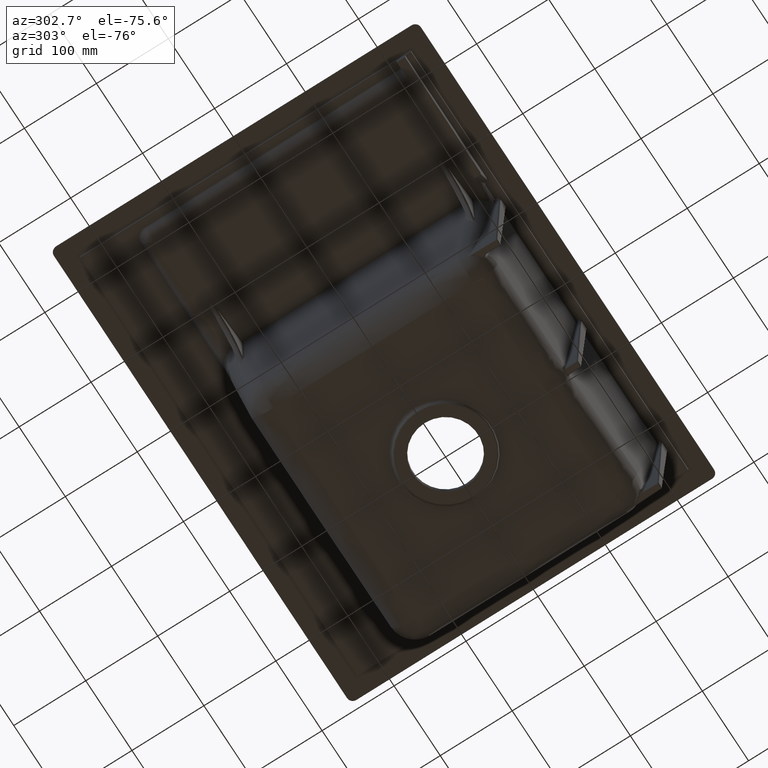
[diagram: clean part render]
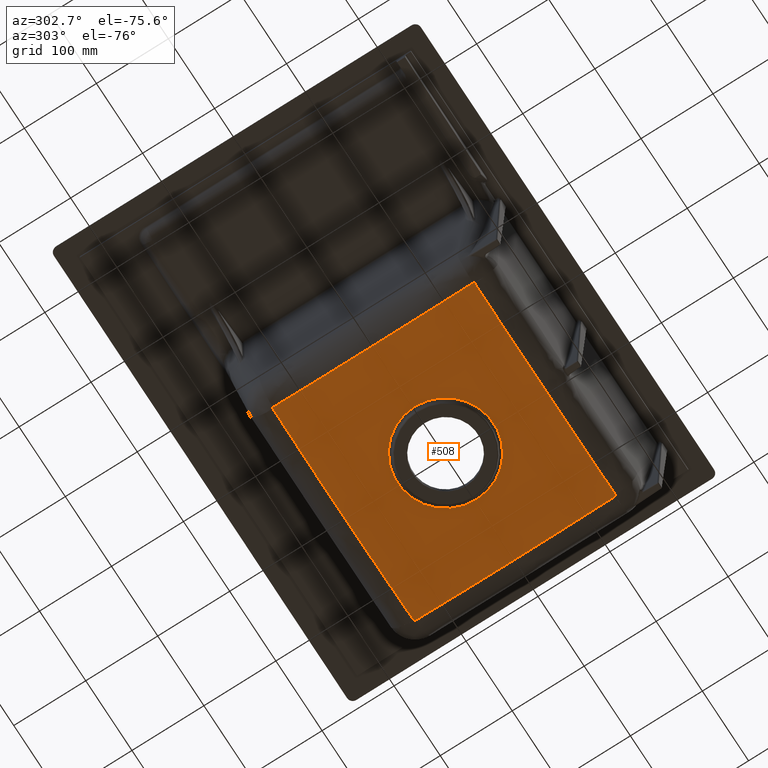
[diagram: same view with one face highlighted and labeled with its STEP entity id]
A machine part, auxiliary view. The second image highlights one B-rep face of the part: STEP entity #508.
In plain terms, the highlighted conical surface has half-angle 86 deg.
Its self-contained STEP definition (entity closure, byte-faithful):
#93=FACE_BOUND('',#1064,.T.);
#94=FACE_BOUND('',#1065,.T.);
#103=CONICAL_SURFACE('',#3953,63.3319769449786,86.);
#187=CIRCLE('',#3944,66.8230713004215);
#508=ADVANCED_FACE('',(#93,#94),#103,.T.);
#1064=EDGE_LOOP('',(#1880,#1881,#1882,#1883,#1884,#1885,#1886,#1887,#1888));
#1065=EDGE_LOOP('',(#1889));
#1440=B_SPLINE_CURVE_WITH_KNOTS('',3,(#8664,#8665,#8666,#8667,#8668,#8669,
#8670,#8671,#8672,#8673,#8674,#8675,#8676,#8677,#8678,#8679,#8680,#8681,
#8682,#8683,#8684,#8685,#8686,#8687,#8688,#8689,#8690,#8691,#8692,#8693,
#8694,#8695,#8696,#8697,#8698,#8699,#8700,#8701,#8702,#8703,#8704,#8705,
#8706,#8707,#8708,#8709,#8710,#8711),.UNSPECIFIED.,.F.,.F.,(4,2,2,2,2,1,
2,2,2,2,2,2,2,2,2,2,2,2,2,2,1,2,2,2,4),(0.,0.125000000000001,0.187500000000002,
0.218750000000002,0.234375000000002,0.242187500000002,0.246093750000002,
0.250000000000002,0.312500000000002,0.343750000000002,0.359375000000002,
0.375000000000001,0.5,0.562499999999999,0.593749999999999,0.609374999999999,
0.624999999999999,0.687499999999998,0.718749999999998,0.734374999999997,
0.742187499999997,0.746093749999997,0.749999999999997,0.874999999999999,
1.),.UNSPECIFIED.);
#1441=B_SPLINE_CURVE_WITH_KNOTS('',3,(#8714,#8715,#8716,#8717,#8718,#8719,
#8720,#8721,#8722,#8723,#8724,#8725),.UNSPECIFIED.,.F.,.F.,(4,2,2,2,2,4),
(0.,0.211716823864517,0.423882974742039,0.63906559405971,0.854877048097277,
1.),.UNSPECIFIED.);
#1442=B_SPLINE_CURVE_WITH_KNOTS('',3,(#8727,#8728,#8729,#8730,#8731,#8732,
#8733,#8734,#8735,#8736,#8737,#8738,#8739,#8740,#8741,#8742,#8743,#8744,
#8745,#8746,#8747,#8748,#8749,#8750,#8751,#8752,#8753,#8754,#8755,#8756,
#8757,#8758,#8759,#8760),.UNSPECIFIED.,.F.,.F.,(4,2,2,2,2,2,2,2,2,2,2,2,
2,2,2,2,4),(0.,0.125000000000001,0.187500000000001,0.218750000000001,0.234375000000001,
0.250000000000001,0.312500000000001,0.375000000000001,0.500000000000001,
0.562500000000001,0.593750000000001,0.625000000000001,0.687500000000001,
0.718750000000001,0.734375000000001,0.75,1.),.UNSPECIFIED.);
#1443=B_SPLINE_CURVE_WITH_KNOTS('',3,(#8762,#8763,#8764,#8765,#8766,#8767,
#8768,#8769,#8770,#8771,#8772,#8773),.UNSPECIFIED.,.F.,.F.,(4,2,2,2,2,4),
(0.,0.145626910799789,0.361734866379035,0.576995031248322,0.788632292524085,
1.),.UNSPECIFIED.);
#1444=B_SPLINE_CURVE_WITH_KNOTS('',3,(#8775,#8776,#8777,#8778,#8779,#8780,
#8781,#8782,#8783,#8784,#8785,#8786,#8787,#8788,#8789,#8790,#8791,#8792,
#8793,#8794,#8795,#8796,#8797,#8798,#8799,#8800,#8801,#8802,#8803,#8804,
#8805,#8806,#8807,#8808,#8809,#8810,#8811,#8812,#8813,#8814,#8815,#8816,
#8817,#8818,#8819,#8820,#8821,#8822),.UNSPECIFIED.,.F.,.F.,(4,2,2,2,2,1,
2,2,2,2,2,2,2,2,2,2,2,2,2,2,1,2,2,2,4),(0.,0.124999999999997,0.187499999999996,
0.218749999999995,0.234374999999995,0.242187499999995,0.246093749999995,
0.249999999999995,0.312499999999995,0.343749999999994,0.359374999999994,
0.374999999999994,0.499999999999994,0.562499999999993,0.593749999999993,
0.609374999999993,0.624999999999993,0.687499999999993,0.718749999999993,
0.734374999999993,0.742187499999993,0.746093749999993,0.749999999999993,
0.874999999999996,1.),.UNSPECIFIED.);
#1445=B_SPLINE_CURVE_WITH_KNOTS('',3,(#8824,#8825,#8826,#8827,#8828,#8829,
#8830,#8831,#8832,#8833,#8834,#8835),.UNSPECIFIED.,.F.,.F.,(4,2,2,2,2,4),
(0.,0.144960365757087,0.360155224294096,0.575347441395898,0.789354088460915,
1.),.UNSPECIFIED.);
#1446=B_SPLINE_CURVE_WITH_KNOTS('',3,(#8837,#8838,#8839,#8840,#8841,#8842,
#8843,#8844,#8845,#8846,#8847,#8848,#8849,#8850,#8851,#8852,#8853,#8854,
#8855,#8856,#8857,#8858,#8859,#8860,#8861),.UNSPECIFIED.,.F.,.F.,(4,2,2,
2,2,1,2,2,2,2,2,2,4),(0.,0.249999999999994,0.374999999999991,0.437499999999989,
0.468749999999988,0.484374999999988,0.492187499999988,0.499999999999988,
0.624999999999991,0.687499999999992,0.718749999999993,0.749999999999994,
1.),.UNSPECIFIED.);
#1447=B_SPLINE_CURVE_WITH_KNOTS('',3,(#8863,#8864,#8865,#8866,#8867,#8868,
#8869,#8870,#8871,#8872,#8873,#8874,#8875,#8876,#8877,#8878,#8879,#8880,
#8881,#8882,#8883,#8884),.UNSPECIFIED.,.F.,.F.,(4,2,2,2,2,2,2,2,2,2,4),
(0.,0.124999999999999,0.187499999999999,0.218749999999999,0.249999999999999,
0.374999999999998,0.437499999999997,0.468749999999997,0.484374999999997,
0.499999999999997,1.),.UNSPECIFIED.);
#1448=B_SPLINE_CURVE_WITH_KNOTS('',3,(#8886,#8887,#8888,#8889,#8890,#8891,
#8892,#8893,#8894,#8895,#8896,#8897),.UNSPECIFIED.,.F.,.F.,(4,2,2,2,2,4),
(0.,0.149599754056844,0.36303187560093,0.576365981097242,0.788448649368495,
1.),.UNSPECIFIED.);
#1880=ORIENTED_EDGE('',*,*,#3382,.T.);
#1881=ORIENTED_EDGE('',*,*,#3383,.T.);
#1882=ORIENTED_EDGE('',*,*,#3384,.T.);
#1883=ORIENTED_EDGE('',*,*,#3385,.T.);
#1884=ORIENTED_EDGE('',*,*,#3386,.T.);
#1885=ORIENTED_EDGE('',*,*,#3387,.T.);
#1886=ORIENTED_EDGE('',*,*,#3388,.T.);
#1887=ORIENTED_EDGE('',*,*,#3389,.T.);
#1888=ORIENTED_EDGE('',*,*,#3390,.T.);
#1889=ORIENTED_EDGE('',*,*,#3335,.T.);
#2976=VERTEX_POINT('',#7975);
#3019=VERTEX_POINT('',#8712);
#3020=VERTEX_POINT('',#8713);
#3021=VERTEX_POINT('',#8726);
#3022=VERTEX_POINT('',#8761);
#3023=VERTEX_POINT('',#8774);
#3024=VERTEX_POINT('',#8823);
#3025=VERTEX_POINT('',#8836);
#3026=VERTEX_POINT('',#8862);
#3027=VERTEX_POINT('',#8885);
#3335=EDGE_CURVE('',#2976,#2976,#187,.T.);
#3382=EDGE_CURVE('',#3019,#3020,#1440,.T.);
#3383=EDGE_CURVE('',#3020,#3021,#1441,.T.);
#3384=EDGE_CURVE('',#3021,#3022,#1442,.T.);
#3385=EDGE_CURVE('',#3022,#3023,#1443,.T.);
#3386=EDGE_CURVE('',#3023,#3024,#1444,.T.);
#3387=EDGE_CURVE('',#3024,#3025,#1445,.T.);
#3388=EDGE_CURVE('',#3025,#3026,#1446,.T.);
#3389=EDGE_CURVE('',#3026,#3027,#1447,.T.);
#3390=EDGE_CURVE('',#3027,#3019,#1448,.T.);
#3944=AXIS2_PLACEMENT_3D('',#7974,#4310,#4311);
#3953=AXIS2_PLACEMENT_3D('',#8898,#4334,#4335);
#4310=DIRECTION('',(0.,0.,1.));
#4311=DIRECTION('',(-1.,0.,0.));
#4334=DIRECTION('',(0.,0.,1.));
#4335=DIRECTION('',(-1.,0.,5.79690455905105E-18));
#7974=CARTESIAN_POINT('',(0.,0.,5.77944236970249));
#7975=CARTESIAN_POINT('',(-66.8230713004215,0.,5.77944236970249));
#8664=CARTESIAN_POINT('',(151.877942827349,-138.681842323498,15.4884658241848));
#8665=CARTESIAN_POINT('',(137.950947849242,-138.628380531571,14.7667810634597));
#8666=CARTESIAN_POINT('',(124.72556107533,-138.616355601263,14.127934491156));
#8667=CARTESIAN_POINT('',(105.796599678712,-138.587134975331,13.2939219153324));
#8668=CARTESIAN_POINT('',(99.6370708314269,-138.577331317105,13.0366272704966));
#8669=CARTESIAN_POINT('',(90.5895139853721,-138.564693399672,12.6817496239008));
#8670=CARTESIAN_POINT('',(87.6054934688904,-138.560877127231,12.5686344618118));
#8671=CARTESIAN_POINT('',(83.1718328972203,-138.556274266908,12.4067277988429));
#8672=CARTESIAN_POINT('',(81.7009990196385,-138.554927545292,12.3540532578807));
#8673=CARTESIAN_POINT('',(79.5045751713632,-138.553252965785,12.2769829664785));
#8674=CARTESIAN_POINT('',(78.4088191378946,-138.55250197294,12.2389332007877));
#8675=CARTESIAN_POINT('',(77.3165980804462,-138.551891365968,12.2016115051123));
#8676=CARTESIAN_POINT('',(76.5892191770198,-138.551516601128,12.1768921679988));
#8677=CARTESIAN_POINT('',(76.2708503876723,-138.551364510493,12.1661236854424));
#8678=CARTESIAN_POINT('',(69.3371288985135,-138.548412113169,11.9330848880601));
#8679=CARTESIAN_POINT('',(62.9456412611086,-138.543536671848,11.7398035288146));
#8680=CARTESIAN_POINT('',(53.473267257965,-138.540083974451,11.4889554003236));
#8681=CARTESIAN_POINT('',(50.3347106334925,-138.539462143169,11.4118516758895));
#8682=CARTESIAN_POINT('',(45.6422709279591,-138.538636086154,11.3059645668326));
#8683=CARTESIAN_POINT('',(44.0806758253162,-138.53836476055,11.2722969434127));
#8684=CARTESIAN_POINT('',(40.9602624801679,-138.537526737418,11.208217855771));
#8685=CARTESIAN_POINT('',(39.4543136567543,-138.536992515218,11.1787827312422));
#8686=CARTESIAN_POINT('',(24.9506799576933,-138.528250014177,10.9109452124013));
#8687=CARTESIAN_POINT('',(12.566106360845,-138.515952446286,10.7915813734228));
#8688=CARTESIAN_POINT('',(-6.54497628928526,-138.477929701652,10.7906075313724));
#8689=CARTESIAN_POINT('',(-12.8221012369039,-138.453504752013,10.819960291098));
#8690=CARTESIAN_POINT('',(-22.2685692904437,-138.427103496387,10.9085054913002));
#8691=CARTESIAN_POINT('',(-25.4224609386442,-138.419394729476,10.9454399014699));
#8692=CARTESIAN_POINT('',(-30.1811320087632,-138.407809826216,11.0119705318778));
#8693=CARTESIAN_POINT('',(-31.771984070408,-138.403910977936,11.0360022445393));
#8694=CARTESIAN_POINT('',(-34.9661709527932,-138.395377336573,11.0877753415802));
#8695=CARTESIAN_POINT('',(-36.6230424555441,-138.390560850314,11.1165001775836));
#8696=CARTESIAN_POINT('',(-44.4110253669552,-138.364197516559,11.2595640206547));
#8697=CARTESIAN_POINT('',(-50.645003964898,-138.338616350719,11.4000635141397));
#8698=CARTESIAN_POINT('',(-60.1106308517138,-138.304534285026,11.6498853829093));
#8699=CARTESIAN_POINT('',(-63.2847314471633,-138.29361192801,11.7396714439229));
#8700=CARTESIAN_POINT('',(-68.0858078634225,-138.277331053284,11.8841186925787));
#8701=CARTESIAN_POINT('',(-69.6928060108619,-138.271910776852,11.9338958016533));
#8702=CARTESIAN_POINT('',(-72.1145760423321,-138.263643229331,12.011003504549));
#8703=CARTESIAN_POINT('',(-73.328277854115,-138.259474491589,12.0501678658178));
#8704=CARTESIAN_POINT('',(-74.5464385118028,-138.255220282973,12.0902479918181));
#8705=CARTESIAN_POINT('',(-75.3595615594452,-138.252361163159,12.1171715790919));
#8706=CARTESIAN_POINT('',(-75.8114609301659,-138.250760145554,12.132238137468));
#8707=CARTESIAN_POINT('',(-87.7825445581251,-138.208039579295,12.533593503141));
#8708=CARTESIAN_POINT('',(-99.7850959641108,-138.18138557261,13.0056024682112));
#8709=CARTESIAN_POINT('',(-125.005413280297,-138.119994238522,14.1152521647621));
#8710=CARTESIAN_POINT('',(-138.220150190307,-138.079571635355,14.7528928962429));
#8711=CARTESIAN_POINT('',(-152.135776295592,-138.077496643452,15.4733495109291));
#8712=CARTESIAN_POINT('',(151.877942827397,-138.681842316006,15.488465823834));
#8713=CARTESIAN_POINT('',(-152.135776295592,-138.077496643456,15.473349510929));
#8714=CARTESIAN_POINT('',(-152.13577629558,-138.077496648827,15.473349511181));
#8715=CARTESIAN_POINT('',(-152.267139704131,-138.077477057682,15.4801506161966));
#8716=CARTESIAN_POINT('',(-152.400309609725,-138.054356112681,15.4859637947781));
#8717=CARTESIAN_POINT('',(-152.648685868221,-137.967072526372,15.49474727979));
#8718=CARTESIAN_POINT('',(-152.767264976273,-137.901660134205,15.4978340091623));
#8719=CARTESIAN_POINT('',(-152.975834736228,-137.737265304113,15.5009688977252));
#8720=CARTESIAN_POINT('',(-153.068246190075,-137.635583364539,15.5010167069802));
#8721=CARTESIAN_POINT('',(-153.213095374144,-137.410385789924,15.4980312445298));
#8722=CARTESIAN_POINT('',(-153.26740088723,-137.283692852377,15.4949467052273));
#8723=CARTESIAN_POINT('',(-153.319630555852,-137.065066260705,15.4874750737029));
#8724=CARTESIAN_POINT('',(-153.330559526404,-136.973708239201,15.4837883526843));
#8725=CARTESIAN_POINT('',(-153.330620619281,-136.88296558126,15.479565772682));
#8726=CARTESIAN_POINT('',(-153.330620619281,-136.88296558126,15.479565772682));
#8727=CARTESIAN_POINT('',(-153.330620619281,-136.88296558126,15.479565772682));
#8728=CARTESIAN_POINT('',(-153.338979441801,-124.467473668071,14.90182858853));
#8729=CARTESIAN_POINT('',(-153.359945070951,-112.55523628596,14.3919161228714));
#8730=CARTESIAN_POINT('',(-153.390154957348,-95.2698584814094,13.7287845021236));
#8731=CARTESIAN_POINT('',(-153.400710807178,-89.6040863262324,13.5246968081644));
#8732=CARTESIAN_POINT('',(-153.417366337703,-81.2164025797754,13.2439995366606));
#8733=CARTESIAN_POINT('',(-153.42305337493,-78.4389164716583,13.1546728243985));
#8734=CARTESIAN_POINT('',(-153.431640716664,-74.295362148055,13.0270413233641));
#8735=CARTESIAN_POINT('',(-153.434510762353,-72.9179508107499,12.9855572509124));
#8736=CARTESIAN_POINT('',(-153.440212843265,-70.1697833894816,12.904708628462));
#8737=CARTESIAN_POINT('',(-153.443030349127,-68.825649324384,12.8660519642132));
#8738=CARTESIAN_POINT('',(-153.457662096882,-61.4539152319474,12.659809495225));
#8739=CARTESIAN_POINT('',(-153.467188467958,-55.6422666774469,12.5153097186103));
#8740=CARTESIAN_POINT('',(-153.488724607658,-44.0991029473535,12.2672985625328));
#8741=CARTESIAN_POINT('',(-153.501062351397,-38.4386587904931,12.1647494823899));
#8742=CARTESIAN_POINT('',(-153.52234711065,-20.8983341832414,11.911472414206));
#8743=CARTESIAN_POINT('',(-153.5364627765,-9.44639290036736,11.8326400145451));
#8744=CARTESIAN_POINT('',(-153.530474278681,7.97420224505939,11.849415805397));
#8745=CARTESIAN_POINT('',(-153.523338773169,13.729791783033,11.8775103181228));
#8746=CARTESIAN_POINT('',(-153.516690607118,22.3931972843357,11.9534059608741));
#8747=CARTESIAN_POINT('',(-153.51483537306,25.2859688336511,11.9843301540683));
#8748=CARTESIAN_POINT('',(-153.510222924035,31.0985512573349,12.0574298316776));
#8749=CARTESIAN_POINT('',(-153.507098297848,34.0524714202972,12.1001850215748));
#8750=CARTESIAN_POINT('',(-153.493289384283,42.6605259330986,12.2400140453773));
#8751=CARTESIAN_POINT('',(-153.481207661612,48.3980850510863,12.3536439319043));
#8752=CARTESIAN_POINT('',(-153.465341698435,57.0794538508259,12.5547045676828));
#8753=CARTESIAN_POINT('',(-153.460251879805,59.9856372995417,12.6268274139403));
#8754=CARTESIAN_POINT('',(-153.45239185133,64.3720162856223,12.7426656348236));
#8755=CARTESIAN_POINT('',(-153.449726304131,65.8386520024604,12.7825540337008));
#8756=CARTESIAN_POINT('',(-153.444131006401,68.7822643429451,12.864882148621));
#8757=CARTESIAN_POINT('',(-153.44107096718,70.2894247204193,12.9082490827486));
#8758=CARTESIAN_POINT('',(-153.393042646739,93.50994168241,13.5922608764912));
#8759=CARTESIAN_POINT('',(-153.341080140641,116.328868176957,14.5044712599563));
#8760=CARTESIAN_POINT('',(-153.327997281364,141.261361231625,15.6851162210111));
#8761=CARTESIAN_POINT('',(-153.327997281364,141.261361231625,15.685116221011));
#8762=CARTESIAN_POINT('',(-153.327997281364,141.261361231625,15.685116221011));
#8763=CARTESIAN_POINT('',(-153.327950069988,141.351335416024,15.6893768285783));
#8764=CARTESIAN_POINT('',(-153.317053349247,141.4419265269,15.6931109590452));
#8765=CARTESIAN_POINT('',(-153.265079676202,141.65837685031,15.7007078718358));
#8766=CARTESIAN_POINT('',(-153.21115034436,141.783665825788,15.7038872495784));
#8767=CARTESIAN_POINT('',(-153.06754261727,142.006170353231,15.7070961149578));
#8768=CARTESIAN_POINT('',(-152.976048611098,142.106554515962,15.7071830491742));
#8769=CARTESIAN_POINT('',(-152.769941380445,142.268586139185,15.704346446201));
#8770=CARTESIAN_POINT('',(-152.65301935055,142.332985963094,15.7014354156715));
#8771=CARTESIAN_POINT('',(-152.408042741255,142.41900694155,15.6930171906004));
#8772=CARTESIAN_POINT('',(-152.276655063599,142.441793477597,15.6873950670325));
#8773=CARTESIAN_POINT('',(-152.147049313591,142.441810436491,15.68077989037));
#8774=CARTESIAN_POINT('',(-152.147049313591,142.441810436491,15.68077989037));
#8775=CARTESIAN_POINT('',(-152.147049313621,142.441810423232,15.6807798897379));
#8776=CARTESIAN_POINT('',(-138.285746960967,142.44362369118,14.9732883871216));
#8777=CARTESIAN_POINT('',(-125.100545942029,142.472117424933,14.3467920371327));
#8778=CARTESIAN_POINT('',(-106.188684722312,142.494130681891,13.5285402410906));
#8779=CARTESIAN_POINT('',(-100.027698672521,142.499620138555,13.2760384305667));
#8780=CARTESIAN_POINT('',(-90.9672418222993,142.507277729114,12.9276588970163));
#8781=CARTESIAN_POINT('',(-87.9771416172851,142.509776389716,12.816594582872));
#8782=CARTESIAN_POINT('',(-83.5317588871153,142.513900646164,12.6575914072144));
#8783=CARTESIAN_POINT('',(-82.0565843529157,142.515338300209,12.6058558979217));
#8784=CARTESIAN_POINT('',(-79.8530127824311,142.517640970862,12.5301509578723));
#8785=CARTESIAN_POINT('',(-78.7535237560252,142.51882874132,12.49277306882));
#8786=CARTESIAN_POINT('',(-77.6573339649444,142.520079517433,12.4561070512264));
#8787=CARTESIAN_POINT('',(-76.9272572156357,142.52092817436,12.4318212331548));
#8788=CARTESIAN_POINT('',(-76.6051323341525,142.521308573366,12.4211572839288));
#8789=CARTESIAN_POINT('',(-69.6880775434061,142.52965317491,12.1936194518194));
#8790=CARTESIAN_POINT('',(-63.3057960256706,142.533530628856,12.0047799815388));
#8791=CARTESIAN_POINT('',(-53.840498577507,142.54051790677,11.7594914513221));
#8792=CARTESIAN_POINT('',(-50.7031984654976,142.542925754921,11.6840570537839));
#8793=CARTESIAN_POINT('',(-46.0115459994874,142.546022051749,11.5803981262775));
#8794=CARTESIAN_POINT('',(-44.4500316785808,142.546955045549,11.5474272619089));
#8795=CARTESIAN_POINT('',(-41.32952449331,142.548337654127,11.4846497561054));
#8796=CARTESIAN_POINT('',(-39.8209058501124,142.548787930065,11.4557551711243));
#8797=CARTESIAN_POINT('',(-25.3375374886772,142.548752624075,11.1935258933273));
#8798=CARTESIAN_POINT('',(-12.9536562550628,142.53778868206,11.0752776131287));
#8799=CARTESIAN_POINT('',(6.15643860794715,142.493280335579,11.070162416325));
#8800=CARTESIAN_POINT('',(12.4378354596179,142.46597144344,11.0972504015566));
#8801=CARTESIAN_POINT('',(21.887991913702,142.431865486157,11.1810719556534));
#8802=CARTESIAN_POINT('',(25.0426698664558,142.421075326036,11.2162107363939));
#8803=CARTESIAN_POINT('',(29.8007974128204,142.404202278672,11.279716301567));
#8804=CARTESIAN_POINT('',(31.3911824227275,142.398432096886,11.3026843889685));
#8805=CARTESIAN_POINT('',(34.5837040782566,142.385981891161,11.3522196951254));
#8806=CARTESIAN_POINT('',(36.2346171349161,142.379072455064,11.3796465738755));
#8807=CARTESIAN_POINT('',(44.0382155563113,142.342433227544,11.5171821960657));
#8808=CARTESIAN_POINT('',(50.281232553695,142.307126902462,11.6526810514373));
#8809=CARTESIAN_POINT('',(59.75219182043,142.255760792342,11.8941348709234));
#8810=CARTESIAN_POINT('',(62.9267185431681,142.23863396489,11.9809870668236));
#8811=CARTESIAN_POINT('',(67.7261962800568,142.212330151065,12.1208167447812));
#8812=CARTESIAN_POINT('',(69.332289695711,142.203449262978,12.1690185347849));
#8813=CARTESIAN_POINT('',(71.752128316972,142.189801165253,12.2437090658173));
#8814=CARTESIAN_POINT('',(72.9647209439014,142.182894693962,12.2816512928402));
#8815=CARTESIAN_POINT('',(74.1815549569198,142.175829139898,12.3204889621231));
#8816=CARTESIAN_POINT('',(74.9937450590358,142.171079121894,12.346579728814));
#8817=CARTESIAN_POINT('',(75.4425367414751,142.168433685224,12.3610980215265));
#8818=CARTESIAN_POINT('',(87.482982232088,142.096949061378,12.7528395276728));
#8819=CARTESIAN_POINT('',(99.5203940613597,142.033403811045,13.2141345599468));
#8820=CARTESIAN_POINT('',(124.750596640416,141.884787944913,14.2995735862138));
#8821=CARTESIAN_POINT('',(137.940646507248,141.794159731514,14.9237175802067));
#8822=CARTESIAN_POINT('',(151.807675782585,141.726526207297,15.629286055059));
#8823=CARTESIAN_POINT('',(151.807675782585,141.726526207299,15.629286055059));
#8824=CARTESIAN_POINT('',(151.807675782608,141.726526216712,15.629286055509));
#8825=CARTESIAN_POINT('',(151.903592717994,141.72605840503,15.634166406338));
#8826=CARTESIAN_POINT('',(152.000102593029,141.714312928347,15.6385411330485));
#8827=CARTESIAN_POINT('',(152.230904259797,141.658897596731,15.6477085541861));
#8828=CARTESIAN_POINT('',(152.364587668595,141.601658858151,15.6518274978429));
#8829=CARTESIAN_POINT('',(152.602649502901,141.448694803833,15.656752445651));
#8830=CARTESIAN_POINT('',(152.71028476245,141.350891240306,15.6576266101808));
#8831=CARTESIAN_POINT('',(152.884945415718,141.129159450409,15.6560707852174));
#8832=CARTESIAN_POINT('',(152.954535951553,141.002394954415,15.6536377407595));
#8833=CARTESIAN_POINT('',(153.046435672414,140.738748268024,15.6458779297593));
#8834=CARTESIAN_POINT('',(153.070667399584,140.598556530315,15.6404928863439));
#8835=CARTESIAN_POINT('',(153.071182763464,140.460147986987,15.6339757926315));
#8836=CARTESIAN_POINT('',(153.071182763464,140.460147986987,15.6339757926315));
#8837=CARTESIAN_POINT('',(153.071184464031,140.460147989189,15.6339758803533));
#8838=CARTESIAN_POINT('',(153.059067205594,127.879727437428,15.0385774071718));
#8839=CARTESIAN_POINT('',(153.066136388366,115.818153365287,14.5119257179328));
#8840=CARTESIAN_POINT('',(153.078895602434,98.339873137636,13.825068359988));
#8841=CARTESIAN_POINT('',(153.084295324293,92.6149916073411,13.6133026033254));
#8842=CARTESIAN_POINT('',(153.094286194056,84.1473454861721,13.3214340123099));
#8843=CARTESIAN_POINT('',(153.097936266406,81.3446545246568,13.2284411559678));
#8844=CARTESIAN_POINT('',(153.103811645041,77.1655668851074,13.0953968824493));
#8845=CARTESIAN_POINT('',(153.105835343558,75.7766899759177,13.0521229597756));
#8846=CARTESIAN_POINT('',(153.108940675921,73.698945533413,12.9888233285136));
#8847=CARTESIAN_POINT('',(153.110510559418,72.6614654897814,12.9575763260698));
#8848=CARTESIAN_POINT('',(153.112098694336,71.6259454245474,12.9269335434067));
#8849=CARTESIAN_POINT('',(153.113160485771,70.9360196652615,12.9066392926937));
#8850=CARTESIAN_POINT('',(153.113648094675,70.6202134824884,12.8974005008691));
#8851=CARTESIAN_POINT('',(153.123477734058,64.2707906575178,12.7128816118582));
#8852=CARTESIAN_POINT('',(153.130732792835,58.3870508754426,12.5601134868576));
#8853=CARTESIAN_POINT('',(153.144587589332,49.6312662392063,12.3623063669298));
#8854=CARTESIAN_POINT('',(153.149587558356,46.7241713983243,12.301594838216));
#8855=CARTESIAN_POINT('',(153.157120500966,42.3710517942545,12.2183638120387));
#8856=CARTESIAN_POINT('',(153.159626629433,40.9212579495109,12.1919261811285));
#8857=CARTESIAN_POINT('',(153.164403704471,38.0224526340315,12.1416630082724));
#8858=CARTESIAN_POINT('',(153.166630993925,36.6054386257766,12.1183345817218));
#8859=CARTESIAN_POINT('',(153.184941034428,23.2719384228541,11.9111850659924));
#8860=CARTESIAN_POINT('',(153.197209492459,11.7544183570326,11.8192684376753));
#8861=CARTESIAN_POINT('',(153.200893087558,-0.00783500743969858,11.8195680839115));
#8862=CARTESIAN_POINT('',(153.200893087558,-0.00783500743967825,11.8195680839115));
#8863=CARTESIAN_POINT('',(153.200893088348,-0.00783500743945116,11.8195680839668));
#8864=CARTESIAN_POINT('',(153.202745991394,-5.75836325557222,11.8197182166108));
#8865=CARTESIAN_POINT('',(153.19805144136,-11.451014660434,11.8419367900178));
#8866=CARTESIAN_POINT('',(153.19580539273,-20.0075527448557,11.9083673112729));
#8867=CARTESIAN_POINT('',(153.195549194906,-22.8626341413194,11.9360279285486));
#8868=CARTESIAN_POINT('',(153.195103630619,-27.1622007451055,11.9857945197485));
#8869=CARTESIAN_POINT('',(153.194927388316,-28.5982092889781,12.0037626610294));
#8870=CARTESIAN_POINT('',(153.194182375005,-31.477902853888,12.0424574986867));
#8871=CARTESIAN_POINT('',(153.193592566895,-32.951860082576,12.0636461792709));
#8872=CARTESIAN_POINT('',(153.18870350123,-40.0430888223786,12.1718661278519));
#8873=CARTESIAN_POINT('',(153.181625750044,-45.7090046638471,12.2785206050658));
#8874=CARTESIAN_POINT('',(153.174212628731,-54.2737539320739,12.4686200984102));
#8875=CARTESIAN_POINT('',(153.172095308208,-57.1395457773849,12.5370062257789));
#8876=CARTESIAN_POINT('',(153.16906287926,-61.4630857431561,12.6471148612129));
#8877=CARTESIAN_POINT('',(153.168067701727,-62.9084002306661,12.6850726470877));
#8878=CARTESIAN_POINT('',(153.166482597779,-65.0835717547242,12.7438916869951));
#8879=CARTESIAN_POINT('',(153.165938411083,-65.8098284053045,12.7638117604801));
#8880=CARTESIAN_POINT('',(153.164794246743,-67.26490108189,12.8042793611485));
#8881=CARTESIAN_POINT('',(153.164146506436,-68.0480787209277,12.8263800133422));
#8882=CARTESIAN_POINT('',(153.144554834081,-90.3498854346569,13.4635482710797));
#8883=CARTESIAN_POINT('',(153.127359657237,-112.847583252223,14.3466090553857));
#8884=CARTESIAN_POINT('',(153.161037569615,-137.400664752662,15.4948704952826));
#8885=CARTESIAN_POINT('',(153.161037569615,-137.400664752663,15.4948704952825));
#8886=CARTESIAN_POINT('',(153.161043689653,-137.400664729421,15.4948708127525));
#8887=CARTESIAN_POINT('',(153.161160707929,-137.501159618087,15.4995695219262));
#8888=CARTESIAN_POINT('',(153.149017257791,-137.602397599082,15.5036676770178));
#8889=CARTESIAN_POINT('',(153.091688824791,-137.838534453001,15.5117280262672));
#8890=CARTESIAN_POINT('',(153.033752771379,-137.973079506938,15.5150150957534));
#8891=CARTESIAN_POINT('',(152.879244619843,-138.212545403437,15.5182168755493));
#8892=CARTESIAN_POINT('',(152.780591841588,-138.320746971935,15.5181773805098));
#8893=CARTESIAN_POINT('',(152.557084683123,-138.496142589515,15.5148362010663));
#8894=CARTESIAN_POINT('',(152.429376929229,-138.565926537489,15.5115081398147));
#8895=CARTESIAN_POINT('',(152.162155322635,-138.658373299865,15.502040233836));
#8896=CARTESIAN_POINT('',(152.019019536746,-138.682392266756,15.4957766920901));
#8897=CARTESIAN_POINT('',(151.877942827397,-138.681842316006,15.488465823834));
#8898=CARTESIAN_POINT('',(0.,0.,5.53532127123249));